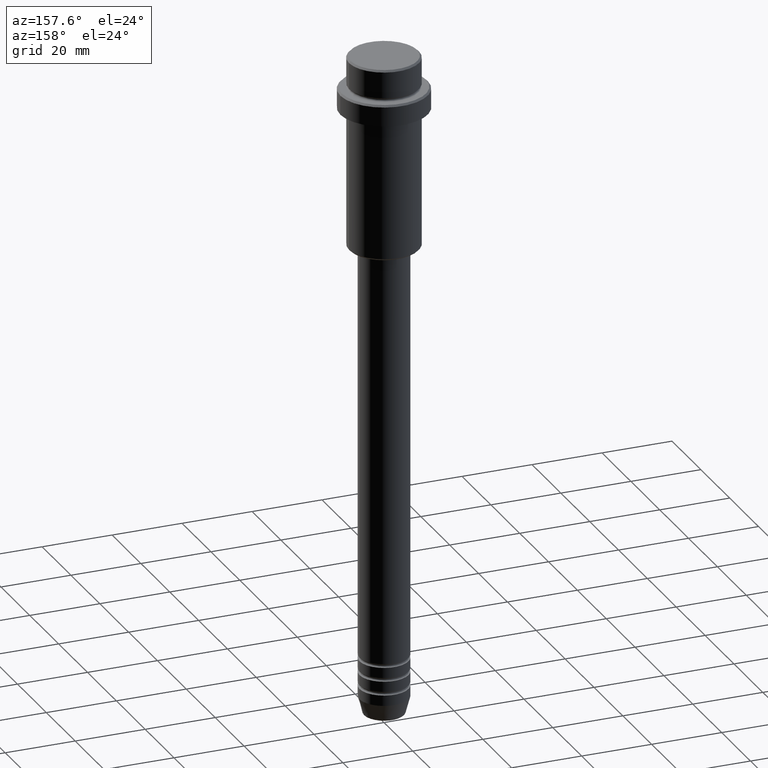
[diagram: clean part render]
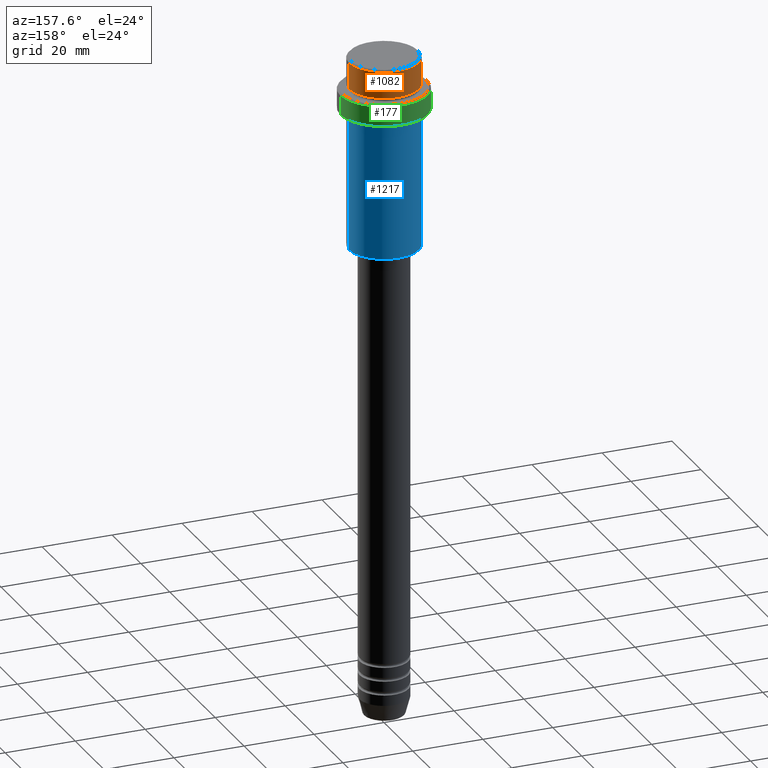
[diagram: same view with three faces highlighted in distinct colors, each labeled with its STEP entity id]
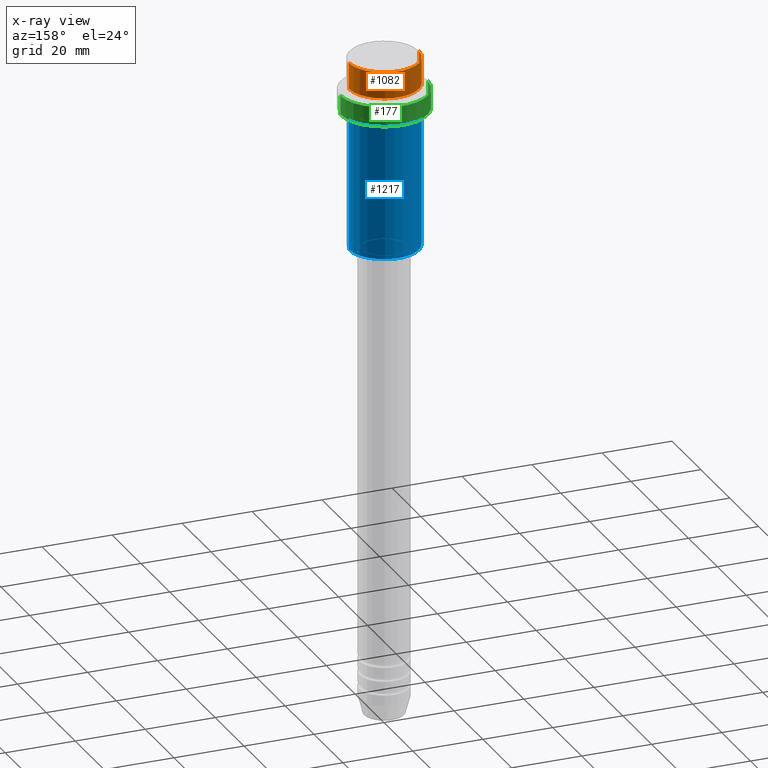
[diagram: x-ray of the same camera — body ghosted, the three highlighted faces saturated]
A machine part, auxiliary view with three faces highlighted in distinct colors.
The next image is the same camera in x-ray (body ghosted, the three faces saturated) — at least one of them is partly hidden behind the body in this view.
Their STEP definitions:

[orange] entity #1082 — the highlighted cylindrical surface (partial cylindrical patch) has radius 10 mm, axis along (-0, -0, 1).
#1 = DIRECTION ( 'NONE',  ( 1.000000000000000000, 0.000000000000000000, 0.000000000000000000 ) ) ;
#189 = CYLINDRICAL_SURFACE ( 'NONE', #1328, 9.999999999999998224 ) ;
#210 = DIRECTION ( 'NONE',  ( -0.000000000000000000, -0.000000000000000000, 1.000000000000000000 ) ) ;
#212 = ORIENTED_EDGE ( 'NONE', *, *, #268, .T. ) ;
#223 = ORIENTED_EDGE ( 'NONE', *, *, #245, .F. ) ;
#231 = VERTEX_POINT ( 'NONE', #1102 ) ;
#245 = EDGE_CURVE ( 'NONE', #1382, #1393, #1083, .T. ) ;
#247 = LINE ( 'NONE', #666, #636 ) ;
#268 = EDGE_CURVE ( 'NONE', #968, #1393, #1398, .T. ) ;
#325 = EDGE_CURVE ( 'NONE', #231, #968, #247, .T. ) ;
#413 = CARTESIAN_POINT ( 'NONE',  ( 0.000000000000000000, 0.000000000000000000, 0.000000000000000000 ) ) ;
#442 = CARTESIAN_POINT ( 'NONE',  ( 9.999999999999998224, 0.000000000000000000, -7.999999999999998224 ) ) ;
#447 = DIRECTION ( 'NONE',  ( -0.000000000000000000, -0.000000000000000000, 1.000000000000000000 ) ) ;
#515 = DIRECTION ( 'NONE',  ( 1.000000000000000000, 0.000000000000000000, 0.000000000000000000 ) ) ;
#535 = CARTESIAN_POINT ( 'NONE',  ( 0.000000000000000000, 0.000000000000000000, -0.4999999999999970024 ) ) ;
#560 = EDGE_LOOP ( 'NONE', ( #879, #1386, #212, #223 ) ) ;
#636 = VECTOR ( 'NONE', #447, 1000.000000000000000 ) ;
#666 = CARTESIAN_POINT ( 'NONE',  ( -9.999999999999998224, 1.224646799147353059E-15, 0.000000000000000000 ) ) ;
#701 = CIRCLE ( 'NONE', #902, 9.999999999999998224 ) ;
#775 = VECTOR ( 'NONE', #966, 1000.000000000000000 ) ;
#842 = CARTESIAN_POINT ( 'NONE',  ( 0.000000000000000000, 0.000000000000000000, -7.999999999999998224 ) ) ;
#857 = CARTESIAN_POINT ( 'NONE',  ( -9.999999999999998224, 1.224646799147353059E-15, -0.4999999999999970024 ) ) ;
#879 = ORIENTED_EDGE ( 'NONE', *, *, #1034, .T. ) ;
#895 = CARTESIAN_POINT ( 'NONE',  ( 9.999999999999998224, 0.000000000000000000, 0.000000000000000000 ) ) ;
#902 = AXIS2_PLACEMENT_3D ( 'NONE', #842, #210, #515 ) ;
#947 = FACE_OUTER_BOUND ( 'NONE', #560, .T. ) ;
#966 = DIRECTION ( 'NONE',  ( -0.000000000000000000, -0.000000000000000000, 1.000000000000000000 ) ) ;
#968 = VERTEX_POINT ( 'NONE', #857 ) ;
#972 = DIRECTION ( 'NONE',  ( 1.000000000000000000, 0.000000000000000000, 0.000000000000000000 ) ) ;
#1010 = DIRECTION ( 'NONE',  ( -0.000000000000000000, -0.000000000000000000, 1.000000000000000000 ) ) ;
#1034 = EDGE_CURVE ( 'NONE', #1382, #231, #701, .T. ) ;
#1082 = ADVANCED_FACE ( 'NONE', ( #947 ), #189, .T. ) ;
#1083 = LINE ( 'NONE', #895, #775 ) ;
#1087 = CARTESIAN_POINT ( 'NONE',  ( 9.999999999999998224, 0.000000000000000000, -0.4999999999999970024 ) ) ;
#1102 = CARTESIAN_POINT ( 'NONE',  ( -9.999999999999998224, 1.224646799147353059E-15, -7.999999999999998224 ) ) ;
#1230 = AXIS2_PLACEMENT_3D ( 'NONE', #535, #1302, #972 ) ;
#1302 = DIRECTION ( 'NONE',  ( 0.000000000000000000, 0.000000000000000000, -1.000000000000000000 ) ) ;
#1328 = AXIS2_PLACEMENT_3D ( 'NONE', #413, #1010, #1 ) ;
#1382 = VERTEX_POINT ( 'NONE', #442 ) ;
#1386 = ORIENTED_EDGE ( 'NONE', *, *, #325, .T. ) ;
#1393 = VERTEX_POINT ( 'NONE', #1087 ) ;
#1398 = CIRCLE ( 'NONE', #1230, 9.999999999999998224 ) ;

[blue] entity #1217 — the highlighted cylindrical surface (partial cylindrical patch) has radius 10 mm, axis along (-0, -0, 1).
#6 = CIRCLE ( 'NONE', #1259, 10.00000000000000000 ) ;
#28 = EDGE_CURVE ( 'NONE', #319, #716, #1342, .T. ) ;
#29 = AXIS2_PLACEMENT_3D ( 'NONE', #257, #764, #679 ) ;
#49 = DIRECTION ( 'NONE',  ( -0.000000000000000000, -0.000000000000000000, 1.000000000000000000 ) ) ;
#91 = CARTESIAN_POINT ( 'NONE',  ( 0.000000000000000000, 0.000000000000000000, -54.50000000000002842 ) ) ;
#113 = DIRECTION ( 'NONE',  ( -1.000000000000000000, 0.000000000000000000, 0.000000000000000000 ) ) ;
#134 = VERTEX_POINT ( 'NONE', #667 ) ;
#142 = CARTESIAN_POINT ( 'NONE',  ( 10.00000000000000000, 0.000000000000000000, -16.00000000000000000 ) ) ;
#229 = CARTESIAN_POINT ( 'NONE',  ( 10.00000000000000000, 0.000000000000000000, 0.000000000000000000 ) ) ;
#257 = CARTESIAN_POINT ( 'NONE',  ( 0.000000000000000000, 0.000000000000000000, 0.000000000000000000 ) ) ;
#290 = VECTOR ( 'NONE', #49, 1000.000000000000000 ) ;
#319 = VERTEX_POINT ( 'NONE', #988 ) ;
#408 = DIRECTION ( 'NONE',  ( 1.000000000000000000, 0.000000000000000000, 0.000000000000000000 ) ) ;
#433 = CARTESIAN_POINT ( 'NONE',  ( 0.000000000000000000, 0.000000000000000000, -16.00000000000000000 ) ) ;
#445 = DIRECTION ( 'NONE',  ( -0.000000000000000000, -0.000000000000000000, 1.000000000000000000 ) ) ;
#472 = LINE ( 'NONE', #229, #290 ) ;
#483 = VERTEX_POINT ( 'NONE', #142 ) ;
#520 = ORIENTED_EDGE ( 'NONE', *, *, #528, .F. ) ;
#522 = DIRECTION ( 'NONE',  ( -0.000000000000000000, -0.000000000000000000, 1.000000000000000000 ) ) ;
#528 = EDGE_CURVE ( 'NONE', #134, #483, #472, .T. ) ;
#595 = ORIENTED_EDGE ( 'NONE', *, *, #1004, .F. ) ;
#602 = ORIENTED_EDGE ( 'NONE', *, *, #1385, .T. ) ;
#616 = VECTOR ( 'NONE', #445, 1000.000000000000000 ) ;
#633 = CIRCLE ( 'NONE', #783, 10.00000000000000000 ) ;
#667 = CARTESIAN_POINT ( 'NONE',  ( 10.00000000000000000, 0.000000000000000000, -54.50000000000002842 ) ) ;
#670 = CYLINDRICAL_SURFACE ( 'NONE', #29, 10.00000000000000000 ) ;
#679 = DIRECTION ( 'NONE',  ( 1.000000000000000000, 0.000000000000000000, 0.000000000000000000 ) ) ;
#716 = VERTEX_POINT ( 'NONE', #1288 ) ;
#723 = ORIENTED_EDGE ( 'NONE', *, *, #28, .T. ) ;
#759 = DIRECTION ( 'NONE',  ( -0.000000000000000000, -0.000000000000000000, 1.000000000000000000 ) ) ;
#764 = DIRECTION ( 'NONE',  ( -0.000000000000000000, -0.000000000000000000, 1.000000000000000000 ) ) ;
#783 = AXIS2_PLACEMENT_3D ( 'NONE', #433, #759, #408 ) ;
#973 = FACE_OUTER_BOUND ( 'NONE', #1110, .T. ) ;
#988 = CARTESIAN_POINT ( 'NONE',  ( -10.00000000000000000, 1.224646799147353256E-15, -54.50000000000002842 ) ) ;
#1004 = EDGE_CURVE ( 'NONE', #483, #716, #633, .T. ) ;
#1110 = EDGE_LOOP ( 'NONE', ( #602, #723, #595, #520 ) ) ;
#1217 = ADVANCED_FACE ( 'NONE', ( #973 ), #670, .T. ) ;
#1259 = AXIS2_PLACEMENT_3D ( 'NONE', #91, #522, #113 ) ;
#1288 = CARTESIAN_POINT ( 'NONE',  ( -10.00000000000000000, 1.224646799147353256E-15, -16.00000000000000000 ) ) ;
#1326 = CARTESIAN_POINT ( 'NONE',  ( -10.00000000000000000, 1.224646799147353256E-15, 0.000000000000000000 ) ) ;
#1342 = LINE ( 'NONE', #1326, #616 ) ;
#1385 = EDGE_CURVE ( 'NONE', #134, #319, #6, .T. ) ;

[green] entity #177 — the highlighted cylindrical surface (partial cylindrical patch) has radius 12.5 mm, axis along (-0, -0, 1).
#3 = CARTESIAN_POINT ( 'NONE',  ( 0.000000000000000000, 0.000000000000000000, -15.00000000000000178 ) ) ;
#24 = CARTESIAN_POINT ( 'NONE',  ( 0.000000000000000000, 0.000000000000000000, 0.000000000000000000 ) ) ;
#27 = LINE ( 'NONE', #334, #634 ) ;
#41 = CYLINDRICAL_SURFACE ( 'NONE', #800, 12.50000000000000000 ) ;
#42 = CARTESIAN_POINT ( 'NONE',  ( 0.000000000000000000, 0.000000000000000000, -9.500000000000007105 ) ) ;
#63 = EDGE_CURVE ( 'NONE', #316, #933, #27, .T. ) ;
#96 = DIRECTION ( 'NONE',  ( -0.000000000000000000, -0.000000000000000000, 1.000000000000000000 ) ) ;
#106 = DIRECTION ( 'NONE',  ( 1.000000000000000000, 0.000000000000000000, 0.000000000000000000 ) ) ;
#177 = ADVANCED_FACE ( 'NONE', ( #1013 ), #41, .T. ) ;
#235 = VERTEX_POINT ( 'NONE', #999 ) ;
#287 = ORIENTED_EDGE ( 'NONE', *, *, #532, .T. ) ;
#316 = VERTEX_POINT ( 'NONE', #635 ) ;
#334 = CARTESIAN_POINT ( 'NONE',  ( 12.50000000000000000, 0.000000000000000000, 0.000000000000000000 ) ) ;
#360 = DIRECTION ( 'NONE',  ( 0.000000000000000000, 0.000000000000000000, -1.000000000000000000 ) ) ;
#491 = CARTESIAN_POINT ( 'NONE',  ( -12.50000000000000000, 1.530808498934191521E-15, -9.500000000000007105 ) ) ;
#510 = ORIENTED_EDGE ( 'NONE', *, *, #63, .F. ) ;
#523 = VECTOR ( 'NONE', #96, 1000.000000000000000 ) ;
#532 = EDGE_CURVE ( 'NONE', #316, #235, #1115, .T. ) ;
#626 = DIRECTION ( 'NONE',  ( 1.000000000000000000, 0.000000000000000000, 0.000000000000000000 ) ) ;
#634 = VECTOR ( 'NONE', #671, 1000.000000000000000 ) ;
#635 = CARTESIAN_POINT ( 'NONE',  ( 12.50000000000000000, 0.000000000000000000, -15.00000000000000178 ) ) ;
#661 = EDGE_LOOP ( 'NONE', ( #287, #989, #770, #510 ) ) ;
#671 = DIRECTION ( 'NONE',  ( -0.000000000000000000, -0.000000000000000000, 1.000000000000000000 ) ) ;
#685 = CIRCLE ( 'NONE', #959, 12.50000000000000000 ) ;
#770 = ORIENTED_EDGE ( 'NONE', *, *, #813, .T. ) ;
#800 = AXIS2_PLACEMENT_3D ( 'NONE', #24, #1346, #1017 ) ;
#813 = EDGE_CURVE ( 'NONE', #1279, #933, #685, .T. ) ;
#858 = DIRECTION ( 'NONE',  ( -0.000000000000000000, -0.000000000000000000, 1.000000000000000000 ) ) ;
#933 = VERTEX_POINT ( 'NONE', #1371 ) ;
#959 = AXIS2_PLACEMENT_3D ( 'NONE', #42, #360, #626 ) ;
#963 = EDGE_CURVE ( 'NONE', #235, #1279, #1413, .T. ) ;
#989 = ORIENTED_EDGE ( 'NONE', *, *, #963, .T. ) ;
#999 = CARTESIAN_POINT ( 'NONE',  ( -12.50000000000000000, 1.530808498934191521E-15, -15.00000000000000178 ) ) ;
#1013 = FACE_OUTER_BOUND ( 'NONE', #661, .T. ) ;
#1017 = DIRECTION ( 'NONE',  ( 1.000000000000000000, 0.000000000000000000, 0.000000000000000000 ) ) ;
#1115 = CIRCLE ( 'NONE', #1260, 12.50000000000000000 ) ;
#1260 = AXIS2_PLACEMENT_3D ( 'NONE', #3, #858, #106 ) ;
#1279 = VERTEX_POINT ( 'NONE', #491 ) ;
#1346 = DIRECTION ( 'NONE',  ( -0.000000000000000000, -0.000000000000000000, 1.000000000000000000 ) ) ;
#1371 = CARTESIAN_POINT ( 'NONE',  ( 12.50000000000000000, 0.000000000000000000, -9.500000000000007105 ) ) ;
#1394 = CARTESIAN_POINT ( 'NONE',  ( -12.50000000000000000, 1.530808498934191521E-15, 0.000000000000000000 ) ) ;
#1413 = LINE ( 'NONE', #1394, #523 ) ;